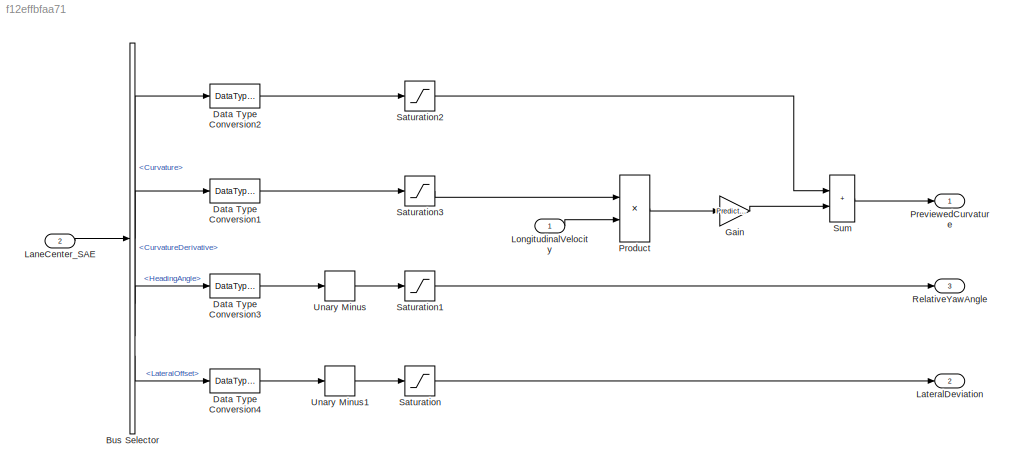
MODEL slx_f12effbfaa71
KIND model
CONFIG AbsTol = auto
CONFIG EnableMultiTasking = on
CONFIG FixedStep = auto
CONFIG MaxStep = auto
CONFIG MinStep = auto
CONFIG RelTol = 1e-3
CONFIG SampleTimeConstraint = Unconstrained
CONFIG SolverName = FixedStepDiscrete
CONFIG StartTime = 0.0
CONFIG StopTime = 10.0
BLOCK [BusSelector] Bus Selector
  OutputSignals = Curvature,CurvatureDerivative,HeadingAngle,LateralOffset
BLOCK [DataTypeConversion] Data Type Conversion1
  OutDataTypeStr = double
  RndMeth = Floor
  SaturateOnIntegerOverflow = off
BLOCK [DataTypeConversion] Data Type Conversion2
  OutDataTypeStr = double
  RndMeth = Floor
  SaturateOnIntegerOverflow = off
BLOCK [DataTypeConversion] Data Type Conversion3
  OutDataTypeStr = double
  RndMeth = Floor
  SaturateOnIntegerOverflow = off
BLOCK [DataTypeConversion] Data Type Conversion4
  OutDataTypeStr = double
  RndMeth = Floor
  SaturateOnIntegerOverflow = off
BLOCK [Gain] Gain
  AttributesFormatString = ----------------------------------------\nGain = %<Gain>
  Gain = PredictionTimeSteps
BLOCK [Inport] LaneCenter_SAE
  OutDataTypeStr = Bus: BusLaneCenter
  Port = 2
  SampleTime = Ts
BLOCK [Outport] LateralDeviation
  OutDataTypeStr = double
  Port = 2
  VectorParamsAs1DForOutWhenUnconnected = off
BLOCK [Inport] LongitudinalVelocity
  OutDataTypeStr = double
  PortDimensions = 1
  SampleTime = Ts
  Unit = m/s
BLOCK [Outport] PreviewedCurvature
  OutDataTypeStr = double
  PortDimensions = PredictionNumSteps
  VectorParamsAs1DForOutWhenUnconnected = off
BLOCK [Product] Product
BLOCK [Outport] RelativeYawAngle
  OutDataTypeStr = double
  Port = 3
  VectorParamsAs1DForOutWhenUnconnected = off
BLOCK [Saturate] Saturation
  AttributesFormatString = -------------------------------\nUpperLimit = %<UpperLimit>\nLowerLimit = %<LowerLimit>
  LowerLimit = LaneCurveParams_Min(4)
  UpperLimit = LaneCurveParams_Max(4)
BLOCK [Saturate] Saturation1
  AttributesFormatString = -------------------------------\nUpperLimit = %<UpperLimit>\nLowerLimit = %<LowerLimit>
  LowerLimit = LaneCurveParams_Min(3)
  UpperLimit = LaneCurveParams_Max(3)
BLOCK [Saturate] Saturation2
  AttributesFormatString = -------------------------------\nUpperLimit = %<UpperLimit>\nLowerLimit = %<LowerLimit>
  LowerLimit = LaneCurveParams_Min(2)
  UpperLimit = LaneCurveParams_Max(2)
BLOCK [Saturate] Saturation3
  AttributesFormatString = -------------------------------\nUpperLimit = %<UpperLimit>\nLowerLimit = %<LowerLimit>
  LowerLimit = LaneCurveParams_Min(1)
  UpperLimit = LaneCurveParams_Max(1)
BLOCK [Sum] Sum
  IconShape = rectangular
BLOCK [UnaryMinus] Unary Minus
BLOCK [UnaryMinus] Unary Minus1
LINE Bus Selector:1 -> Data Type Conversion2:1
LINE Bus Selector:2 -> Data Type Conversion1:1
LINE Bus Selector:3 -> Data Type Conversion3:1
LINE Bus Selector:4 -> Data Type Conversion4:1
LINE Data Type Conversion1:1 -> Saturation3:1
LINE Data Type Conversion2:1 -> Saturation2:1
LINE Data Type Conversion3:1 -> Unary Minus:1
LINE Data Type Conversion4:1 -> Unary Minus1:1
LINE Gain:1 -> Sum:2
LINE LaneCenter_SAE:1 -> Bus Selector:1
LINE LongitudinalVelocity:1 -> Product:2
LINE Product:1 -> Gain:1
LINE Saturation1:1 -> RelativeYawAngle:1
LINE Saturation2:1 -> Sum:1
LINE Saturation3:1 -> Product:1
LINE Saturation:1 -> LateralDeviation:1
LINE Sum:1 -> PreviewedCurvature:1
LINE Unary Minus1:1 -> Saturation:1
LINE Unary Minus:1 -> Saturation1:1
